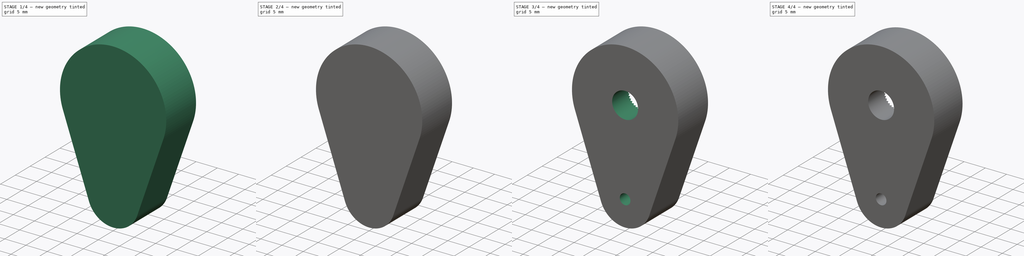
[diagram: build sequence overview — one tinted view per stage of 4, left to right]
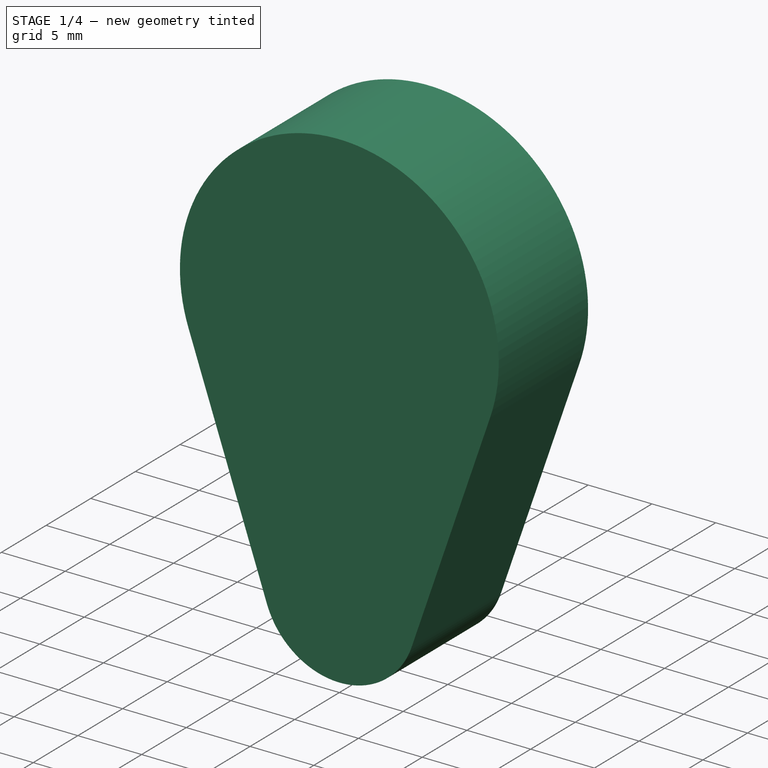
[diagram: stage 1 of 4 — iso view after this stage's code; geometry added in this stage tinted green]
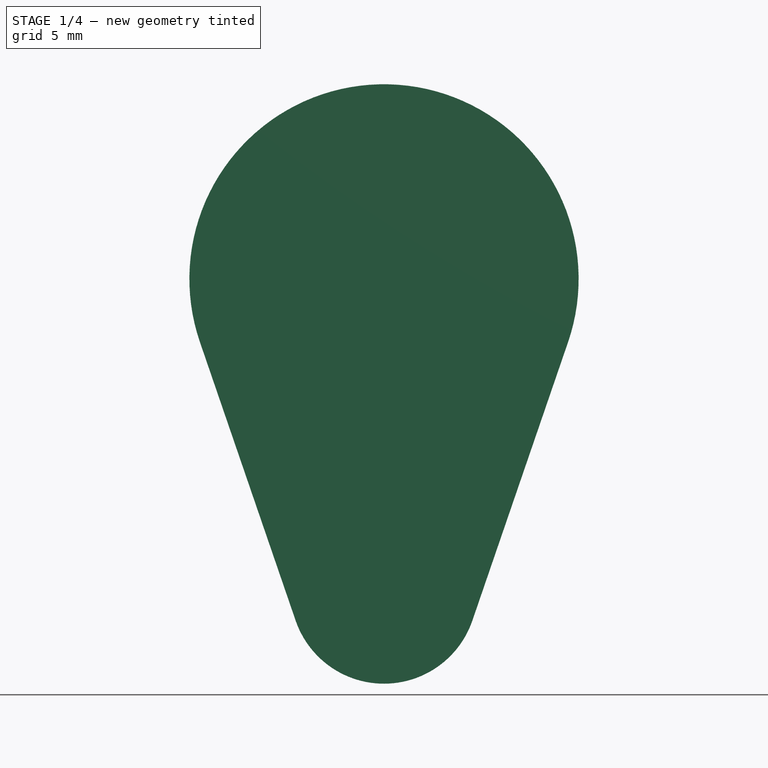
[diagram: stage 1 of 4 — front view after this stage's code; geometry added in this stage tinted green]
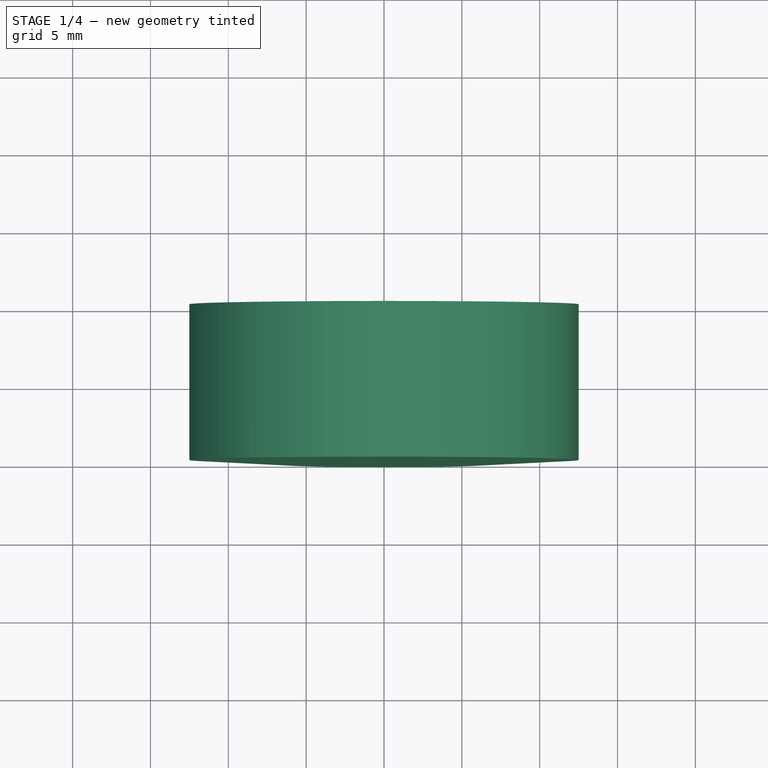
[diagram: stage 1 of 4 — top view after this stage's code; geometry added in this stage tinted green]
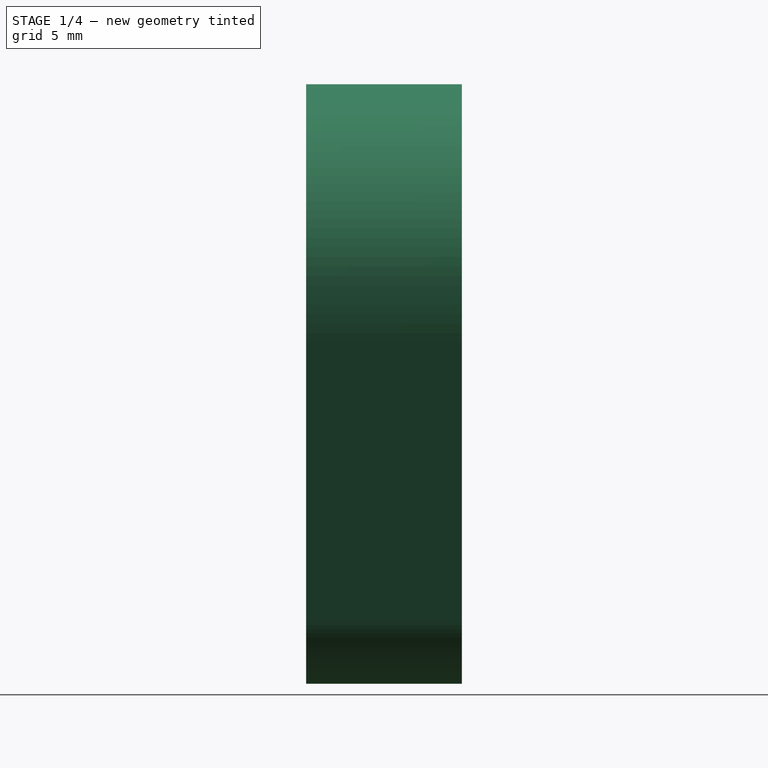
[diagram: stage 1 of 4 — right view after this stage's code; geometry added in this stage tinted green]
FCSTD DOCUMENT  (FreeCAD 0.20R28730 (Git))
Label: Tool Holder Adapter
License: All rights reserved
LicenseURL: http://en.wikipedia.org/wiki/All_rights_reserved
objects: Sketcher::SketchObject×6, PartDesign::Pocket×3, PartDesign::Fillet×2, PartDesign::CoordinateSystem×2, PartDesign::Pad×1, PartDesign::AdditiveLoft×1, PartDesign::PolarPattern×1, PartDesign::Chamfer×1, PartDesign::Body×1
note: 26 computed .brp shape members not serialized (recipe doc carries the construction recipe); baked Part::Feature solids carry a one-line shape summary decoded from their .brp

FEATURE [Sketcher::SketchObject] Sketch
  FullyConstrained = true
  MapMode = 5
  Placement = pos=(0,0,0) rot=(1,0,0;1.5708rad)
  Support = -> [XZ_Plane]
  sketch-geometry (4):
    g0: ArcOfCircle CenterX=0 CenterY=0 CenterZ=0 NormalX=0 NormalY=0 NormalZ=1 AngleXU=0 Radius=12.5 StartAngle=5.95217 EndAngle=9.75579
    g1: ArcOfCircle CenterX=0 CenterY=-20 CenterZ=0 NormalX=0 NormalY=0 NormalZ=1 AngleXU=0 Radius=6 StartAngle=3.4726 EndAngle=5.95217
    g2: LineSegment StartX=11.8214 StartY=-4.0625 StartZ=0 EndX=5.67428 EndY=-21.95 EndZ=0
    g3: LineSegment StartX=-11.8214 StartY=-4.0625 StartZ=0 EndX=-5.67428 EndY=-21.95 EndZ=0
  constraints (9):
    c: Coincident(g0,g-1)
    c: PointOnObject(g1,g-2)
    c: Tangent(g0,g2) = 1.5708
    c: Tangent(g0,g3) = -1.5708
    c: Tangent(g1,g3) = -1.5708
    c: Tangent(g1,g2) = 1.5708
    c: Diameter(g0) = 25
    c: Diameter(g1) = 12
    c: DistanceY(g1,g0) = 20
FEATURE [PartDesign::Pad] Pad
  Direction = (0,-1,-2e-16)
  Length = 10
  Length2 = 100
  Placement = pos=(0,0,0) rot=(1,0,0;1.5708rad)
  Profile = -> Sketch
  ReferenceAxis = -> Sketch [N_Axis]
  Refine = true
  Type = 0
FEATURE [Sketcher::SketchObject] Sketch001
  FullyConstrained = true
  MapMode = 5
  Placement = pos=(0,0,0) rot=(1,0,0;1.5708rad)
  Support = -> [XZ_Plane]
  sketch-geometry (4):
    g0: ArcOfCircle CenterX=0 CenterY=0 CenterZ=0 NormalX=0 NormalY=0 NormalZ=1 AngleXU=0 Radius=8.1 StartAngle=0.872665 EndAngle=3.49066
    g1: ArcOfCircle CenterX=0 CenterY=0 CenterZ=0 NormalX=0 NormalY=0 NormalZ=1 AngleXU=0 Radius=9.3 StartAngle=3.49066 EndAngle=7.15585
    g2: LineSegment StartX=-8.73914 StartY=-3.18079 StartZ=0 EndX=-7.61151 EndY=-2.77036 EndZ=0
    g3: LineSegment StartX=5.20658 StartY=6.20496 StartZ=0 EndX=5.97792 EndY=7.12421 EndZ=0
  constraints (12):
    c: Coincident(g0,g-1)
    c: Coincident(g1,g0)
    c: Coincident(g2,g1)
    c: Coincident(g2,g0)
    c: Coincident(g3,g0)
    c: Coincident(g3,g1)
    c: PointOnObject(g0,g3)
    c: PointOnObject(g0,g2)
    c: Radius(g1) = 9.3
    c: Radius(g0) = 8.1
    c: Angle(g-1,g3) = 0.872665
    c: Angle(g2,g-1) = 2.79253
FEATURE [PartDesign::Pocket] Pocket
  BaseFeature = -> Pad
  Direction = (0,1,2e-16)
  Length = 4.6
  Length2 = 100
  Placement = pos=(0,0,0) rot=(1,0,0;1.5708rad)
  Profile = -> Sketch001
  Refine = true
  Reversed = true
  Type = 0
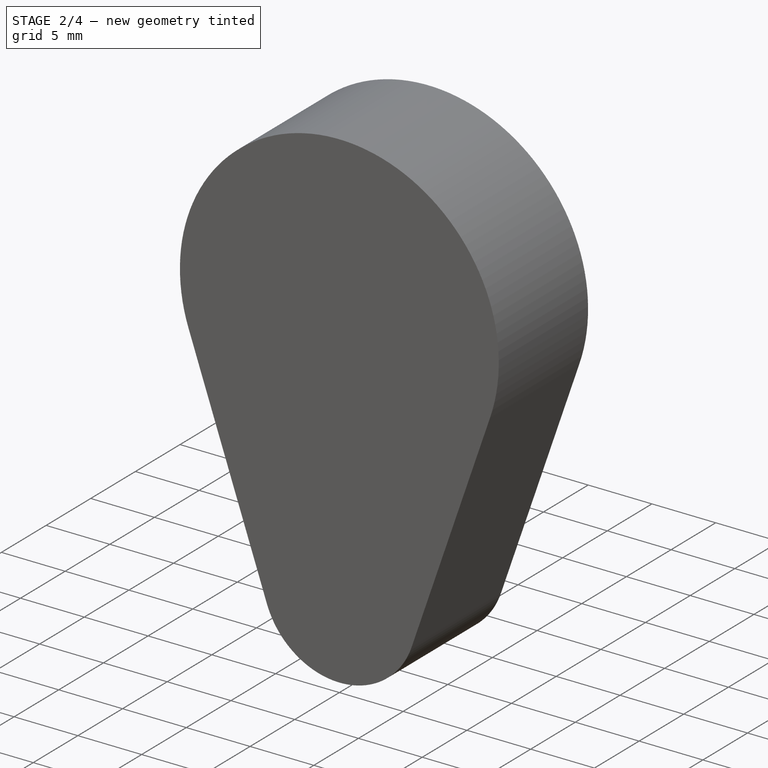
[diagram: stage 2 of 4 — iso view after this stage's code; geometry added in this stage tinted green]
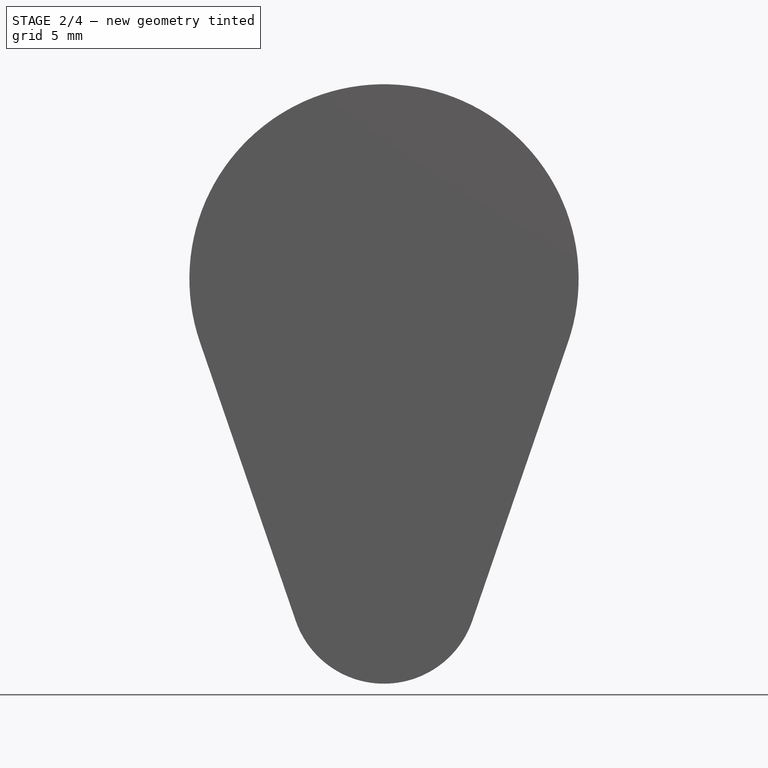
[diagram: stage 2 of 4 — front view after this stage's code; geometry added in this stage tinted green]
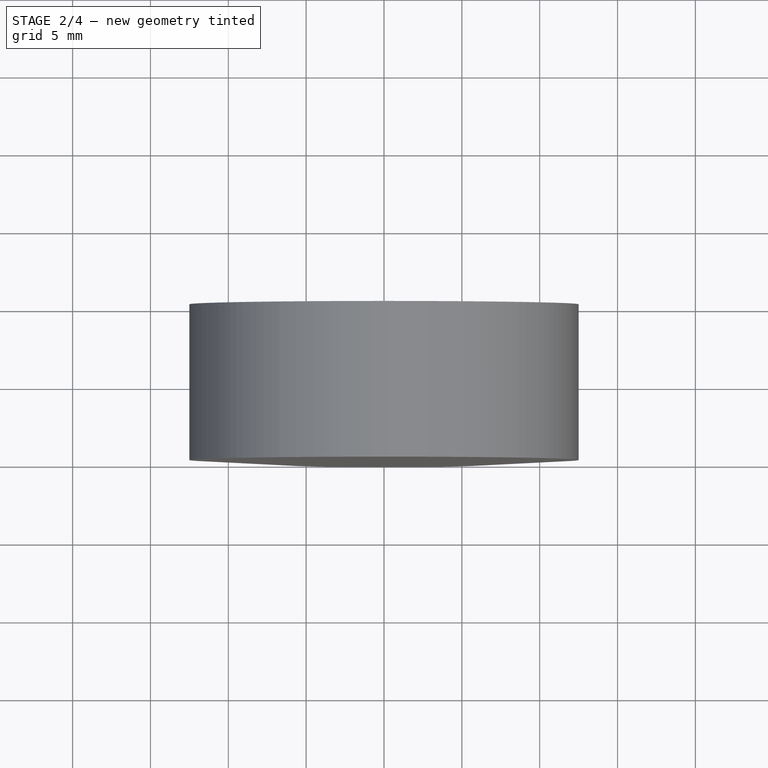
[diagram: stage 2 of 4 — top view after this stage's code; geometry added in this stage tinted green]
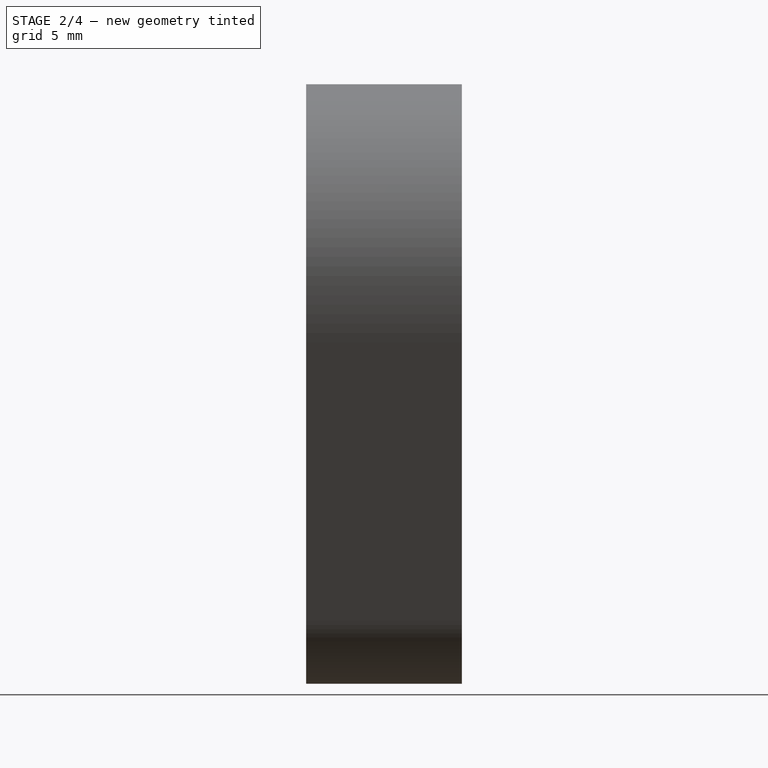
[diagram: stage 2 of 4 — right view after this stage's code; geometry added in this stage tinted green]
FEATURE [Sketcher::SketchObject] Sketch002
  AttachmentOffset = pos=(-4.6,0,-10) rot=(0,0,1;0rad)
  FullyConstrained = true
  MapMode = 5
  Placement = pos=(-10,-4.6,-1.2e-15) rot=(0.57735,0.57735,0.57735;2.0944rad)
  Support = -> [YZ_Plane]
  sketch-geometry (3):
    g0: LineSegment StartX=1 StartY=0 StartZ=0 EndX=0 EndY=0.57735 EndZ=0
    g1: LineSegment StartX=0 StartY=0.57735 StartZ=0 EndX=0 EndY=-0.57735 EndZ=0
    g2: LineSegment StartX=0 StartY=-0.57735 StartZ=0 EndX=1 EndY=0 EndZ=0
  constraints (8):
    c: PointOnObject(g0,g-1)
    c: PointOnObject(g0,g-2)
    c: Coincident(g0,g1)
    c: Coincident(g1,g2)
    c: Coincident(g2,g0)
    c: Symmetric(g1,g0,g-1)
    c: Angle(g0,g2) = 1.0472
    c: DistanceX(g-1,g0) = 1
FEATURE [Sketcher::SketchObject] Sketch003
  AttachmentOffset = pos=(-4.6,0,0) rot=(0,0,1;0rad)
  FullyConstrained = true
  MapMode = 5
  Placement = pos=(-1e-15,-4.6,1e-15) rot=(0.57735,0.57735,0.57735;2.0944rad)
  Support = -> [YZ_Plane]
  sketch-geometry (3):
    g0: LineSegment StartX=0 StartY=0.057735 StartZ=0 EndX=0 EndY=-0.057735 EndZ=0
    g1: LineSegment StartX=0 StartY=-0.057735 StartZ=0 EndX=0.1 EndY=0 EndZ=0
    g2: LineSegment StartX=0.1 StartY=0 StartZ=0 EndX=0 EndY=0.057735 EndZ=0
  constraints (8):
    c: PointOnObject(g0,g-2)
    c: Coincident(g0,g1)
    c: PointOnObject(g1,g-1)
    c: Coincident(g1,g2)
    c: Coincident(g2,g0)
    c: Symmetric(g0,g0,g-1)
    c: Angle(g2,g1) = 1.0472
    c: DistanceX(g-1,g1) = 0.1
FEATURE [PartDesign::AdditiveLoft] AdditiveLoft
  BaseFeature = -> Pocket
  Closed = false
  Placement = pos=(0,0,0) rot=(1,0,0;1.5708rad)
  Profile = -> Sketch002
  Refine = true
  Ruled = false
  Sections = -> [Sketch003]
FEATURE [PartDesign::PolarPattern] PolarPattern
  Angle = 290
  Axis = -> Y_Axis
  BaseFeature = -> AdditiveLoft
  Occurrences = 30
  Originals = -> [AdditiveLoft]
  Placement = pos=(0,0,0) rot=(1,0,0;1.5708rad)
  Refine = true
  Reversed = true
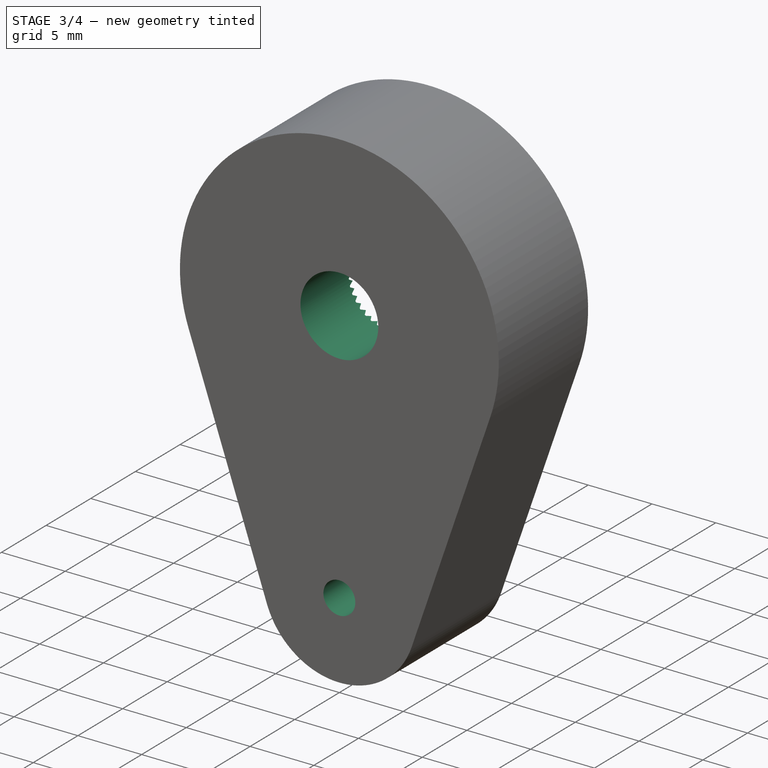
[diagram: stage 3 of 4 — iso view after this stage's code; geometry added in this stage tinted green]
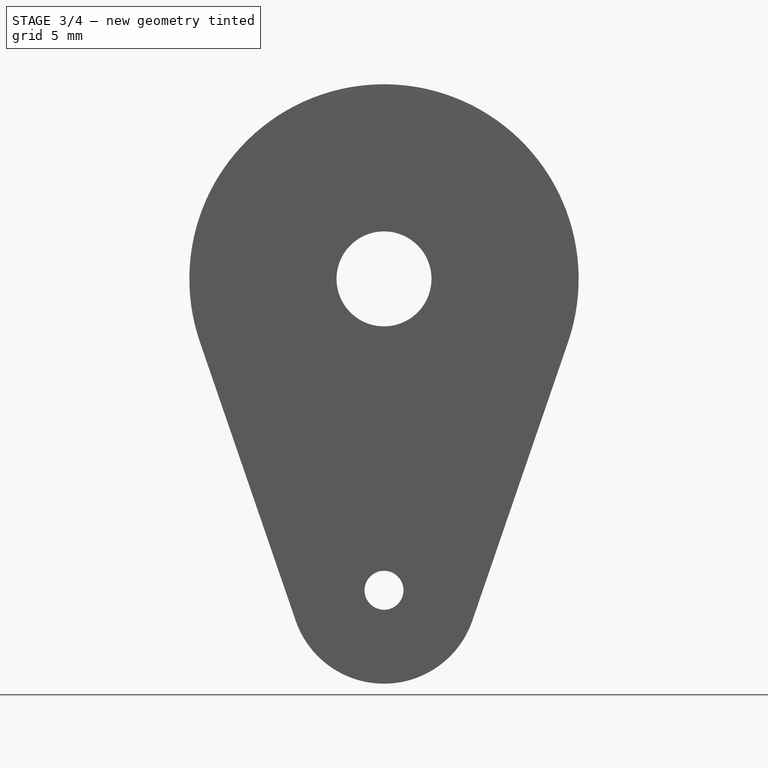
[diagram: stage 3 of 4 — front view after this stage's code; geometry added in this stage tinted green]
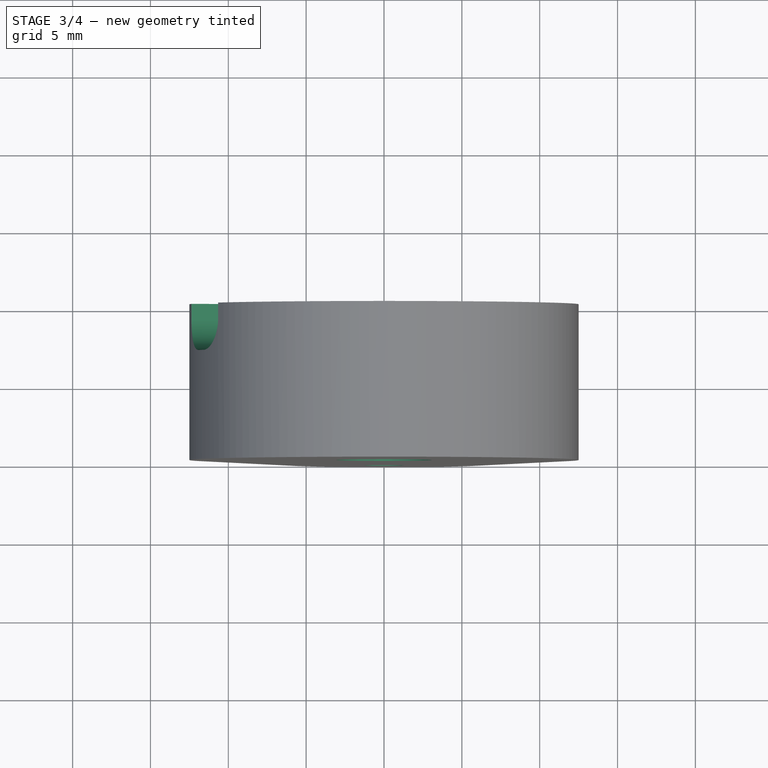
[diagram: stage 3 of 4 — top view after this stage's code; geometry added in this stage tinted green]
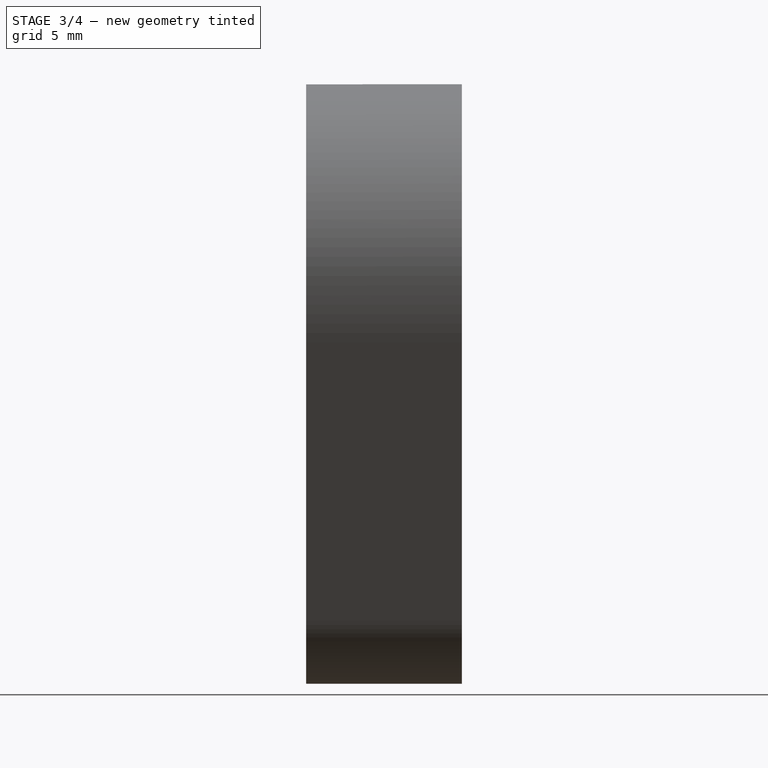
[diagram: stage 3 of 4 — right view after this stage's code; geometry added in this stage tinted green]
FEATURE [Sketcher::SketchObject] Sketch004
  FullyConstrained = true
  MapMode = 5
  Placement = pos=(0,0,0) rot=(1,0,0;1.5708rad)
  Support = -> [XZ_Plane]
  sketch-geometry (2):
    g0: Circle CenterX=0 CenterY=0 CenterZ=0 NormalX=0 NormalY=0 NormalZ=1 AngleXU=0 Radius=3.05
    g1: Circle CenterX=0 CenterY=-20 CenterZ=0 NormalX=0 NormalY=0 NormalZ=1 AngleXU=0 Radius=1.25
  constraints (5):
    c: Coincident(g0,g-1)
    c: Diameter(g0) = 6.1
    c: PointOnObject(g1,g-2)
    c: Diameter(g1) = 2.5
    c: DistanceY(g1,g0) = 20
FEATURE [PartDesign::Pocket] Pocket001
  BaseFeature = -> PolarPattern
  Direction = (0,1,2e-16)
  Length = 5
  Length2 = 100
  Placement = pos=(0,0,0) rot=(1,0,0;1.5708rad)
  Profile = -> Sketch004
  Refine = true
  Reversed = true
  Type = 1
FEATURE [Sketcher::SketchObject] Sketch005
  FullyConstrained = true
  MapMode = 5
  Placement = pos=(0,0,0) rot=(1,0,0;1.5708rad)
  Support = -> [XZ_Plane]
  sketch-geometry (5):
    g0: LineSegment StartX=-18.7939 StartY=9.50085 StartZ=0 EndX=0 EndY=2.66044 EndZ=0
    g1: LineSegment StartX=0 StartY=2.66044 StartZ=0 EndX=-1.7101 EndY=-2.03802 EndZ=0
    g2: LineSegment StartX=-1.7101 StartY=-2.03802 StartZ=0 EndX=-20.504 EndY=4.80238 EndZ=0
    g3: LineSegment StartX=-20.504 StartY=4.80238 StartZ=0 EndX=-18.7939 EndY=9.50085 EndZ=0
    g4: LineSegment StartX=-19.6489 StartY=7.15162 StartZ=0 EndX=0 EndY=0 EndZ=0
  constraints (13):
    c: Coincident(g0,g1)
    c: Coincident(g1,g2)
    c: Coincident(g2,g3)
    c: Coincident(g3,g0)
    c: Perpendicular(g2,g1)
    c: Parallel(g1,g3)
    c: Distance(g3) = 5
    c: Coincident(g4,g-1)
    c: Symmetric(g2,g0,g4)
    c: Symmetric(g1,g0,g4)
    c: PointOnObject(g0,g-2)
    c: Distance(g0) = 20
    c: Angle(g-1,g4) = 2.79253
FEATURE [PartDesign::Pocket] Pocket002
  BaseFeature = -> Pocket001
  Direction = (0,1,2e-16)
  Length = 3
  Length2 = 100
  Placement = pos=(0,0,0) rot=(1,0,0;1.5708rad)
  Profile = -> Sketch005
  Refine = true
  Reversed = true
  Type = 0
FEATURE [PartDesign::Fillet] Fillet
  Base = -> Pocket002 [Edge22,Edge21]
  BaseFeature = -> Pocket002
  Placement = pos=(0,0,0) rot=(1,0,0;1.5708rad)
  Radius = 2
  Refine = true
  SupportTransform = false
  UseAllEdges = false
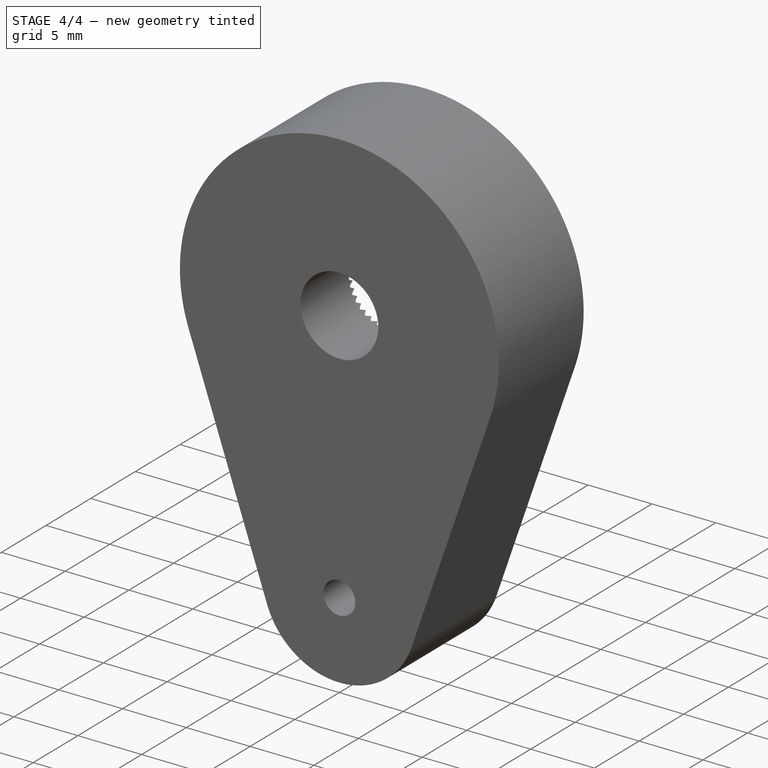
[diagram: stage 4 of 4 — iso view after this stage's code; geometry added in this stage tinted green]
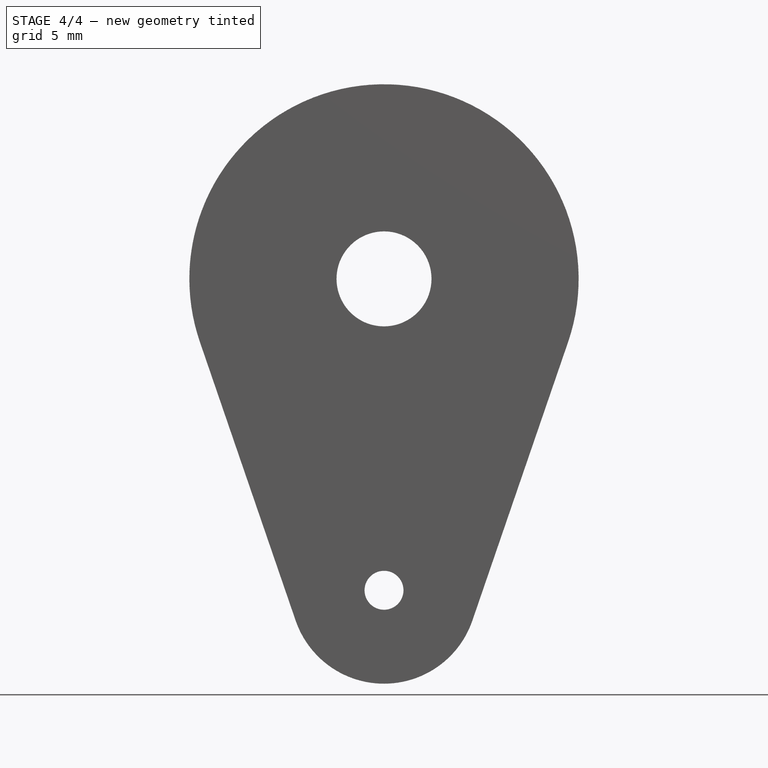
[diagram: stage 4 of 4 — front view after this stage's code; geometry added in this stage tinted green]
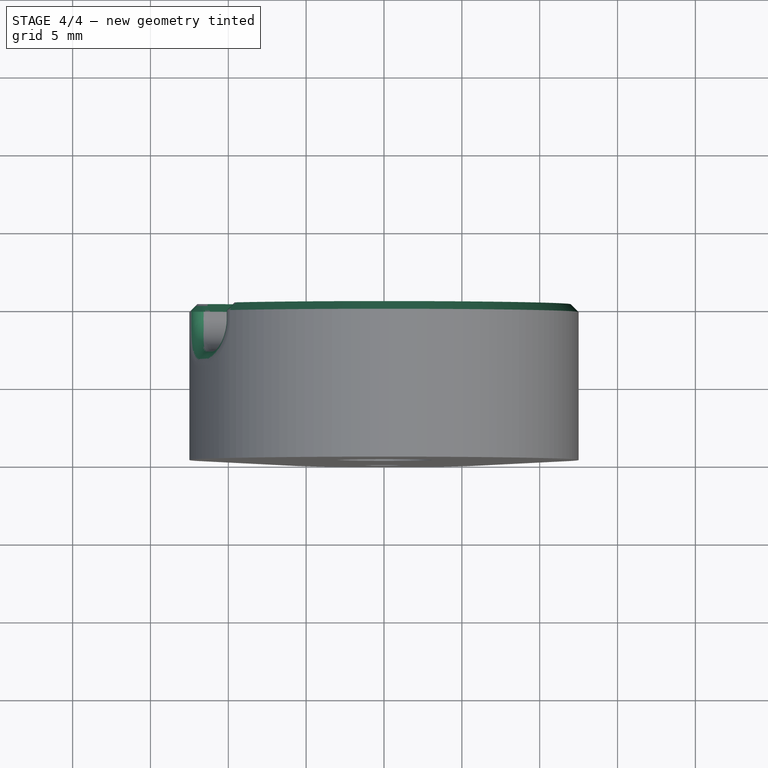
[diagram: stage 4 of 4 — top view after this stage's code; geometry added in this stage tinted green]
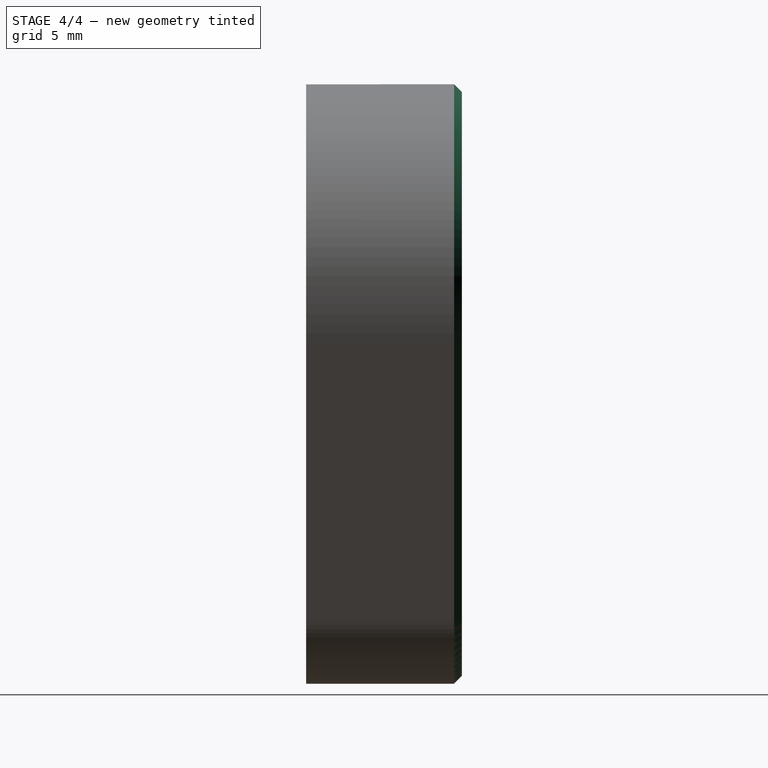
[diagram: stage 4 of 4 — right view after this stage's code; geometry added in this stage tinted green]
FEATURE [PartDesign::Fillet] Fillet001
  Base = -> Fillet [Edge30,Edge6]
  BaseFeature = -> Fillet
  Placement = pos=(0,0,0) rot=(1,0,0;1.5708rad)
  Radius = 1
  Refine = true
  SupportTransform = false
  UseAllEdges = false
FEATURE [PartDesign::Chamfer] Chamfer
  Angle = 45
  Base = -> Fillet001 [Edge20,Edge12]
  BaseFeature = -> Fillet001
  ChamferType = 0
  FlipDirection = false
  Placement = pos=(0,0,0) rot=(1,0,0;1.5708rad)
  Refine = true
  Size = 0.5
  Size2 = 1
  SupportTransform = false
  UseAllEdges = false
FEATURE [PartDesign::CoordinateSystem] Mounting_face_main_hole  label="LCS_Tool_Holder_Adapter_1"
  AttacherType = Attacher::AttachEngine3D
  AttachmentOffset = pos=(0,0,0) rot=(0.57735,-0.57735,-0.57735;2.0944rad)
  MapMode = 11
  Placement = pos=(0,-10,-3.3e-15) rot=(0,0,1;0rad)
  Support = -> [Chamfer]
FEATURE [PartDesign::CoordinateSystem] Holder  label="LCS_Tool_Holder_Adapter_2"
  AttacherType = Attacher::AttachEngine3D
  AttachmentOffset = pos=(0,0,10) rot=(0.57735,-0.57735,-0.57735;2.0944rad)
  MapMode = 11
  Placement = pos=(-1.1e-15,0,-2.2e-15) rot=(0,0,1;0rad)
  Support = -> [Chamfer]
  expr: .AttachmentOffset.Base.z = Pad.Length
FEATURE [PartDesign::Body] Body  label="Tool_Holder_Adapter"
  Group = -> [Sketch,Pad,Sketch001,Pocket,Sketch002,Sketch003,AdditiveLoft,PolarPattern,Sketch004,Pocket001,Sketch005,Pocket002,Fillet,Fillet001,Chamfer,Mounting_face_main_hole,Holder]
  Origin = -> Origin
  Tip = -> Chamfer
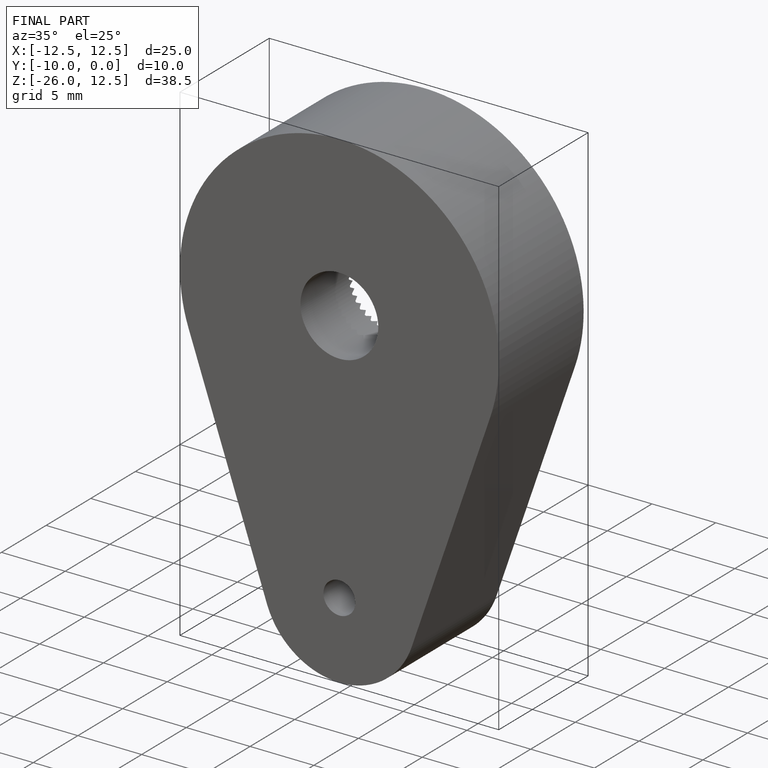
[diagram: finished part — iso view with bounding-box wireframe]
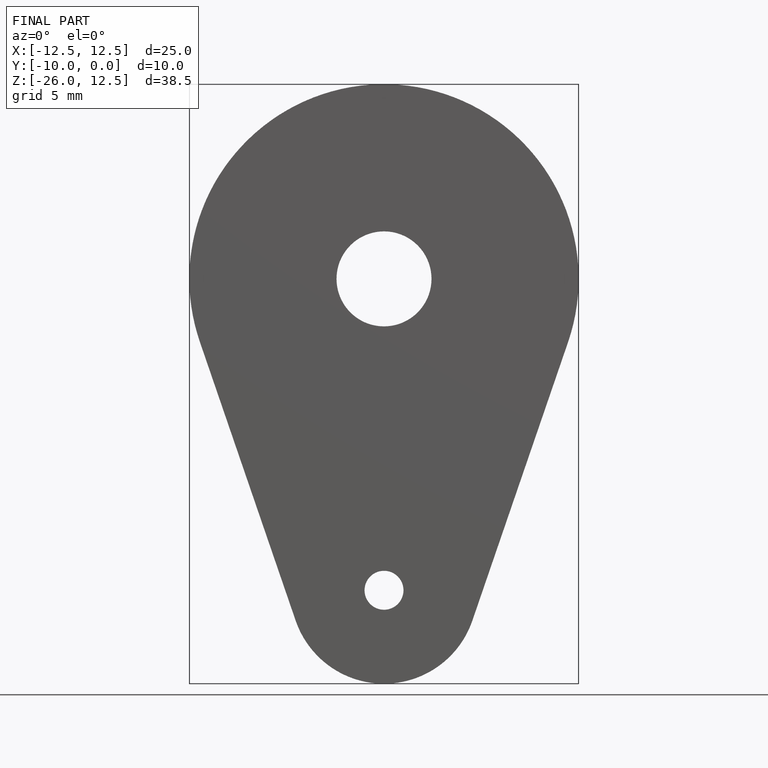
[diagram: finished part — front view with bounding-box wireframe]
